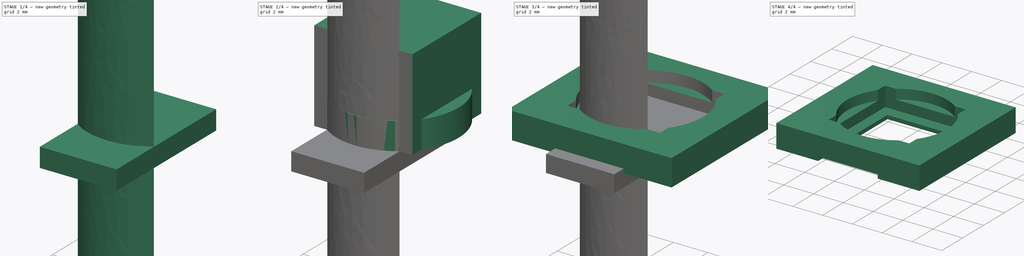
[diagram: build sequence overview — one tinted view per stage of 4, left to right]
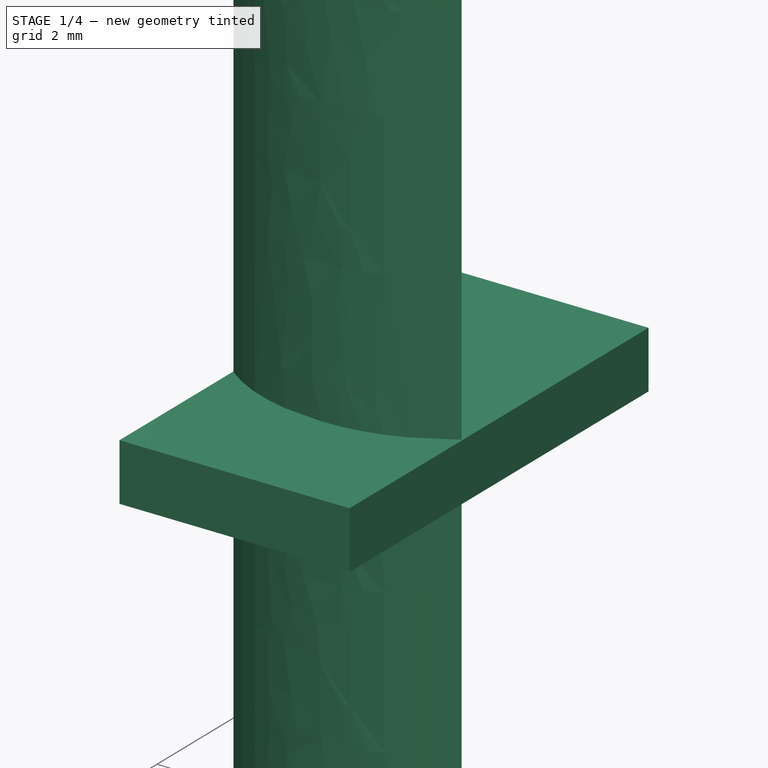
[diagram: stage 1 of 4 — iso view after this stage's code; geometry added in this stage tinted green]
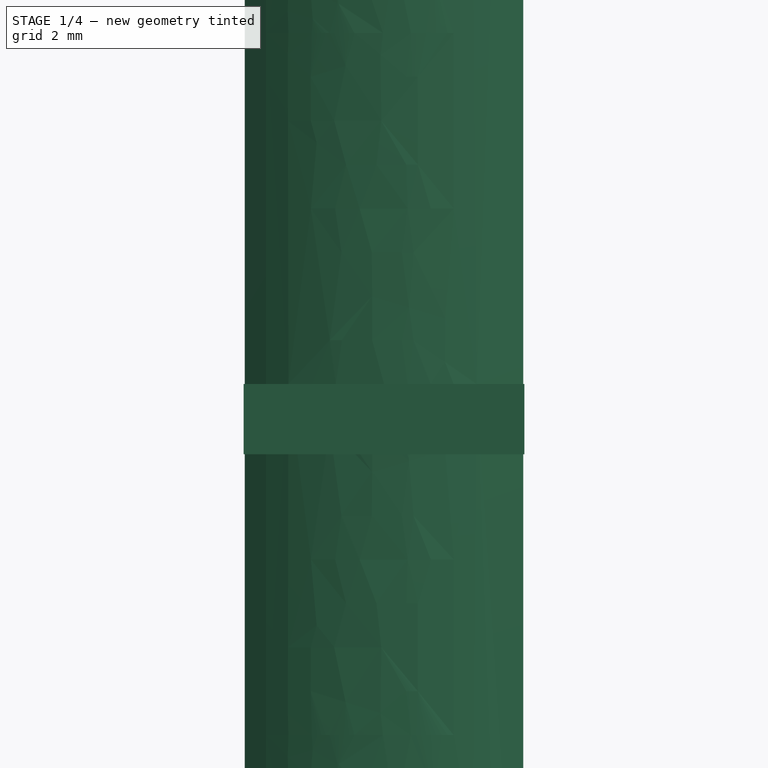
[diagram: stage 1 of 4 — front view after this stage's code; geometry added in this stage tinted green]
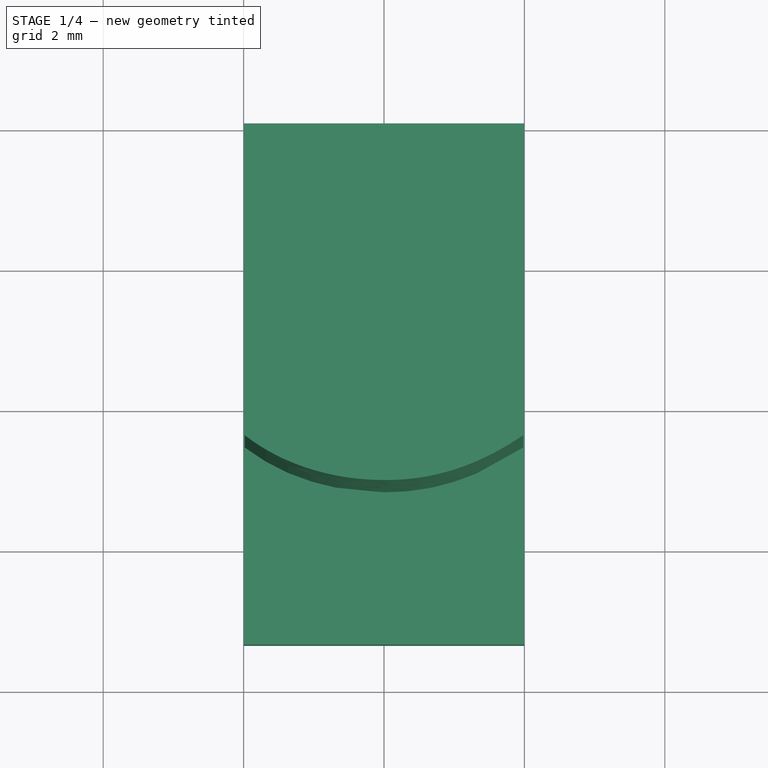
[diagram: stage 1 of 4 — top view after this stage's code; geometry added in this stage tinted green]
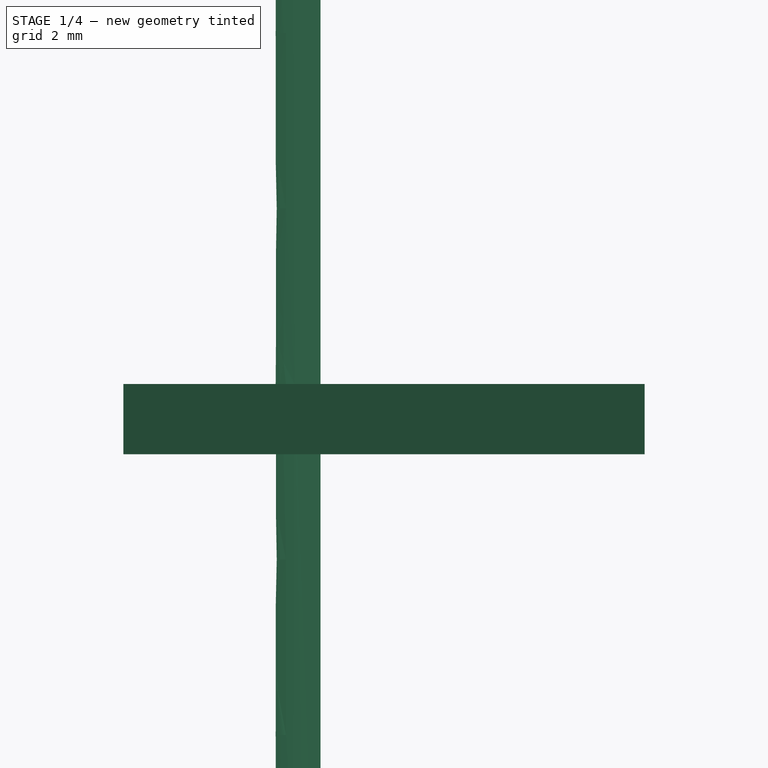
[diagram: stage 1 of 4 — right view after this stage's code; geometry added in this stage tinted green]
FCSTD DOCUMENT  (FreeCAD 0.21R33668 +26 (Git))
Label: o-ring_glass_mount_bottom
License: All rights reserved
LicenseURL: http://en.wikipedia.org/wiki/All_rights_reserved
objects: Sketcher::SketchObject×5, PartDesign::Pad×5, PartDesign::Body×5, Part::Cut×4
note: 24 computed .brp shape members not serialized (recipe doc carries the construction recipe); baked Part::Feature solids carry a one-line shape summary decoded from their .brp

FEATURE [Sketcher::SketchObject] Sketch
  FullyConstrained = true
  MapMode = 5
  Support = -> [XY_Plane]
  sketch-geometry (4):
    g0: LineSegment StartX=-2 StartY=-5.5 StartZ=0 EndX=2 EndY=-5.5 EndZ=0
    g1: LineSegment StartX=2 StartY=-5.5 StartZ=0 EndX=2 EndY=1.926 EndZ=0
    g2: LineSegment StartX=2 StartY=1.926 StartZ=0 EndX=-2 EndY=1.926 EndZ=0
    g3: LineSegment StartX=-2 StartY=1.926 StartZ=0 EndX=-2 EndY=-5.5 EndZ=0
  constraints (11):
    c: Coincident(g0,g1)
    c: Coincident(g1,g2)
    c: Coincident(g2,g3)
    c: Coincident(g3,g0)
    c: Horizontal(g2)
    c: Vertical(g1)
    c: Vertical(g3)
    c: Symmetric(g0,g0,g-2)
    c: DistanceX(g0,g0) = 4
    c: DistanceY(g0,g-1) = 5.5
    c: DistanceY(g-1,g1) = 1.926
FEATURE [PartDesign::Pad] Pad008
  Direction = (0,0,1)
  Length = 1
  Length2 = 10
  Profile = -> Sketch
  ReferenceAxis = -> Sketch [N_Axis]
  Reversed = true
  Type = 0
FEATURE [Sketcher::SketchObject] Sketch008
  FullyConstrained = true
  MapMode = 5
  Support = -> [XY_Plane008]
  sketch-geometry (10):
    g0: LineSegment StartX=-1.98291 StartY=-2.69187 StartZ=0 EndX=1.98291 EndY=-2.69187 EndZ=0
    g1-g5: Circle x5 (B-spline internal-alignment scaffolding for g6; pole/knot coordinates omitted)
    g6: BSplineCurve PolesCount=5 KnotsCount=3 Degree=3 IsPeriodic=0
    g7: GeomPoint X=1.98291 Y=-2.69187 Z=0
    g8: GeomPoint X=0 Y=-3.33 Z=0
    g9: GeomPoint X=-1.98291 Y=-2.69187 Z=0
  constraints (17):
    c: Symmetric(g0,g0,g-2)
    c: Weight(g1) = 1
    c: Coincident(g6,g0)
    c: Equal(g1, g2-g5) x4
    c: Coincident(g6,g0)
    c: InternalAlignment(g1-g5 -> g6) x5
    c: InternalAlignment(g7,g6)
    c: InternalAlignment(g8,g6)
    c: InternalAlignment(g9,g6)
    c: PointOnObject(g8,g-2)
    c: DistanceX(g0) = 1.98291
    c: DistanceY(g0) = -2.69187
    c: DistanceX(g2) = 1.3068
    c: DistanceY(g2) = -3.14996
    c: DistanceY(g8) = -3.33
    c: DistanceX(g3) = 0.04804
    c: DistanceY(g3) = -3.51438
FEATURE [PartDesign::Pad] Pad009
  Direction = (0,0,1)
  Length = 10
  Length2 = 10
  Profile = -> Sketch008
  ReferenceAxis = -> Sketch008 [N_Axis]
  Type = 4
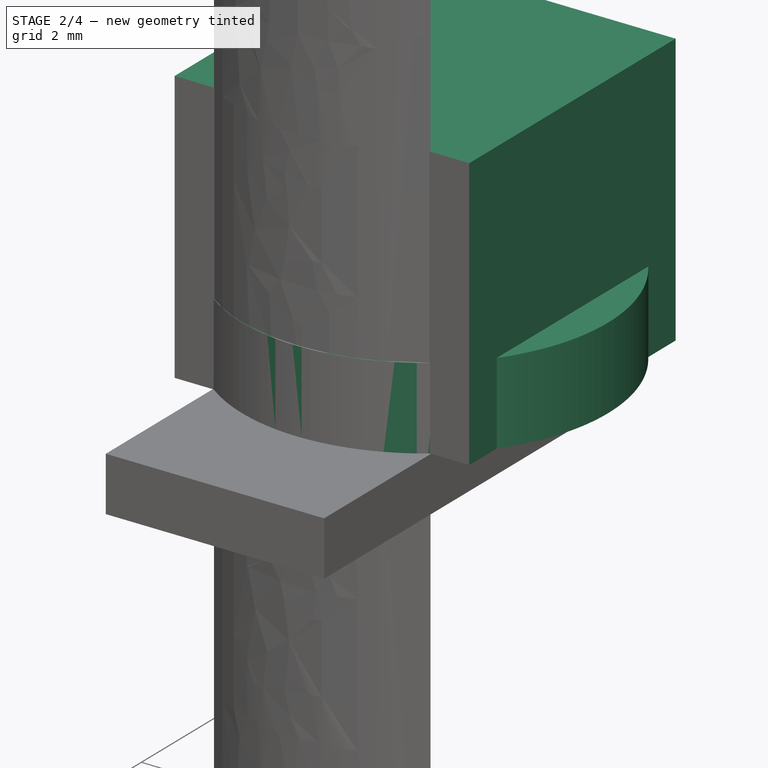
[diagram: stage 2 of 4 — iso view after this stage's code; geometry added in this stage tinted green]
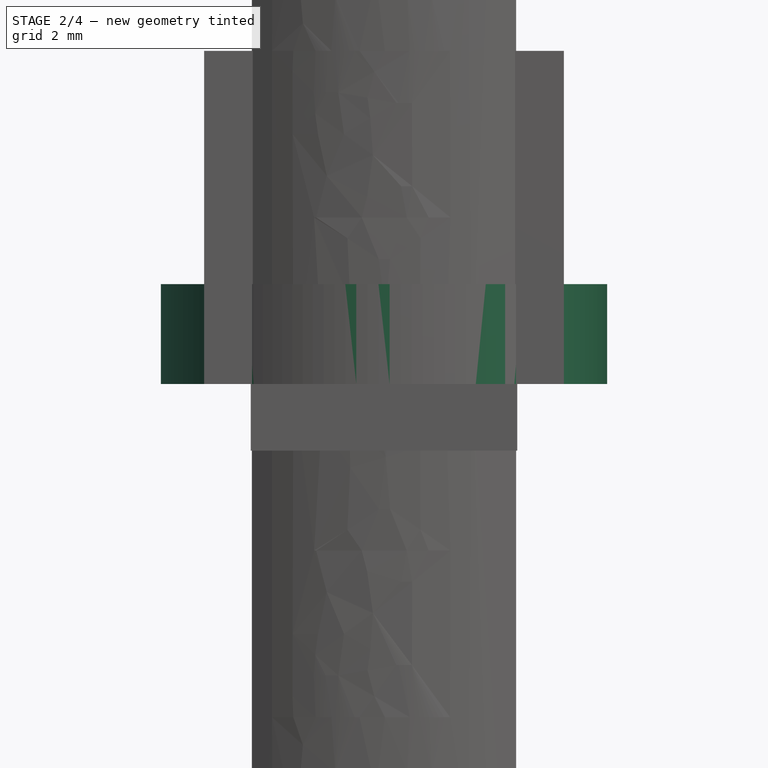
[diagram: stage 2 of 4 — front view after this stage's code; geometry added in this stage tinted green]
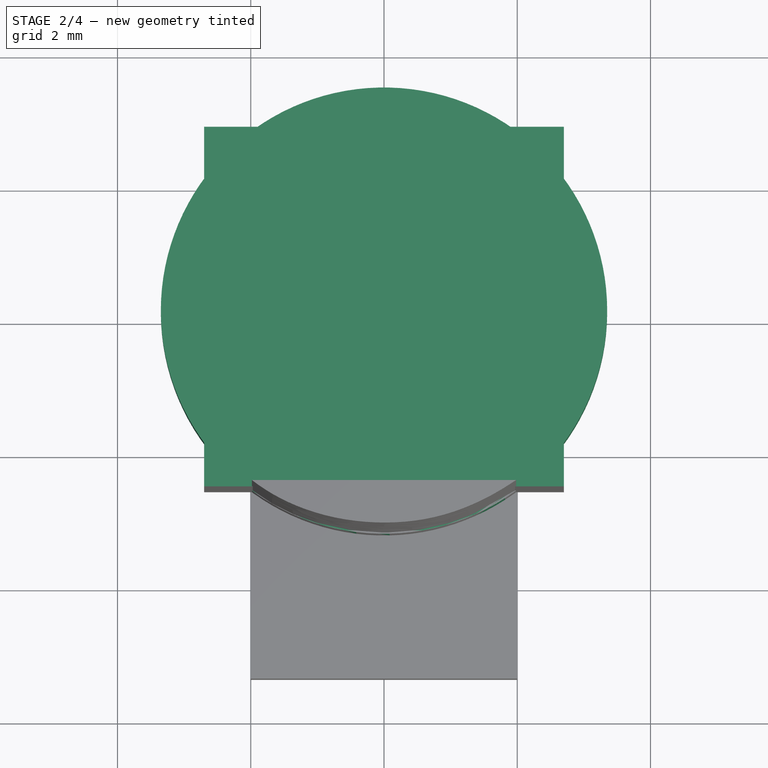
[diagram: stage 2 of 4 — top view after this stage's code; geometry added in this stage tinted green]
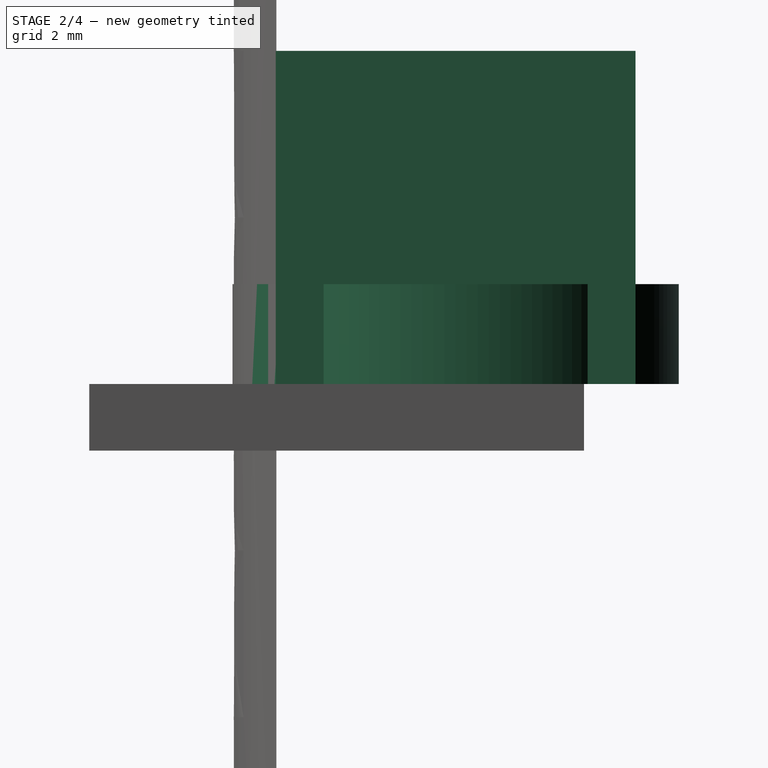
[diagram: stage 2 of 4 — right view after this stage's code; geometry added in this stage tinted green]
FEATURE [PartDesign::Body] Body001
  Group = -> [Sketch001,Pad]
  Origin = -> Origin001
  Placement = pos=(0,0.5,0) rot=(0,0,1;0rad)
  Tip = -> Pad
FEATURE [Sketcher::SketchObject] Sketch006
  FullyConstrained = true
  MapMode = 5
  Support = -> [XY_Plane006]
  sketch-geometry (5):
    g0: LineSegment StartX=2.7 StartY=-2.7 StartZ=0 EndX=2.7 EndY=2.7 EndZ=0
    g1: LineSegment StartX=2.7 StartY=2.7 StartZ=0 EndX=-2.7 EndY=2.7 EndZ=0
    g2: LineSegment StartX=-2.7 StartY=2.7 StartZ=0 EndX=-2.7 EndY=-2.7 EndZ=0
    g3: LineSegment StartX=-2.7 StartY=-2.7 StartZ=0 EndX=2.7 EndY=-2.7 EndZ=0
    g4: GeomPoint X=0 Y=0 Z=0
  constraints (12):
    c: Coincident(g0,g1)
    c: Coincident(g1,g2)
    c: Coincident(g2,g3)
    c: Coincident(g3,g0)
    c: Horizontal(g1)
    c: Horizontal(g3)
    c: Vertical(g0)
    c: Vertical(g2)
    c: Symmetric(g1,g0,g4)
    c: Coincident(g4,g-1)
    c: DistanceY(g0,g0) = 5.4
    c: Equal(g1,g0)
FEATURE [PartDesign::Pad] Pad006
  Direction = (0,0,1)
  Length = 5
  Length2 = 10
  Profile = -> Sketch006
  ReferenceAxis = -> Sketch006 [N_Axis]
  Type = 0
FEATURE [Sketcher::SketchObject] Sketch007
  FullyConstrained = true
  MapMode = 5
  Support = -> [XY_Plane007]
  sketch-geometry (1):
    g0: Circle CenterX=0 CenterY=0 CenterZ=0 NormalX=0 NormalY=0 NormalZ=1 AngleXU=0 Radius=3.35
  constraints (2):
    c: Coincident(g0,g-1)
    c: Diameter(g0) = 6.7
FEATURE [PartDesign::Pad] Pad007
  Direction = (0,0,1)
  Length = 1.5
  Length2 = 10
  Profile = -> Sketch007
  ReferenceAxis = -> Sketch007 [N_Axis]
  Type = 0
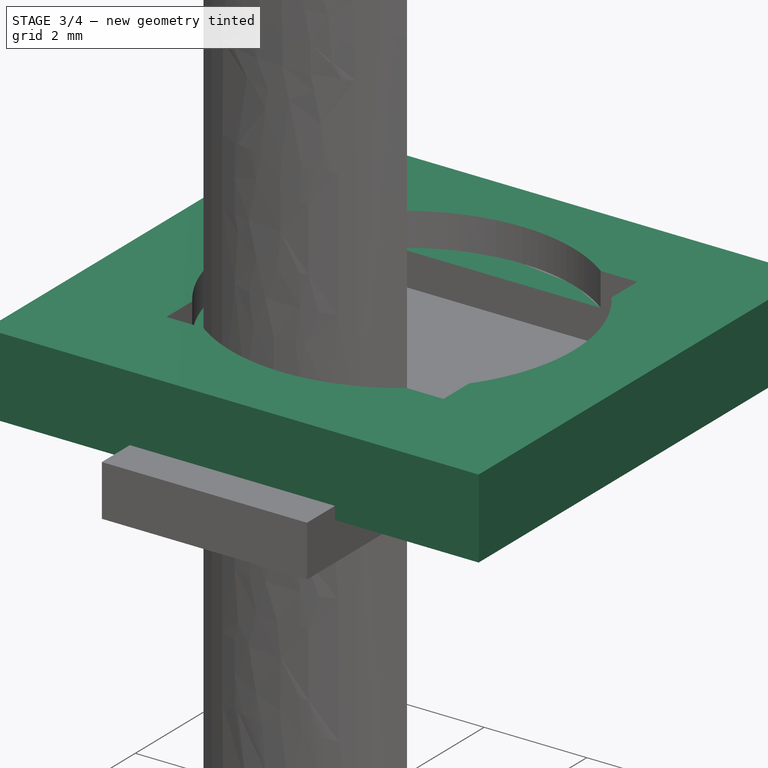
[diagram: stage 3 of 4 — iso view after this stage's code; geometry added in this stage tinted green]
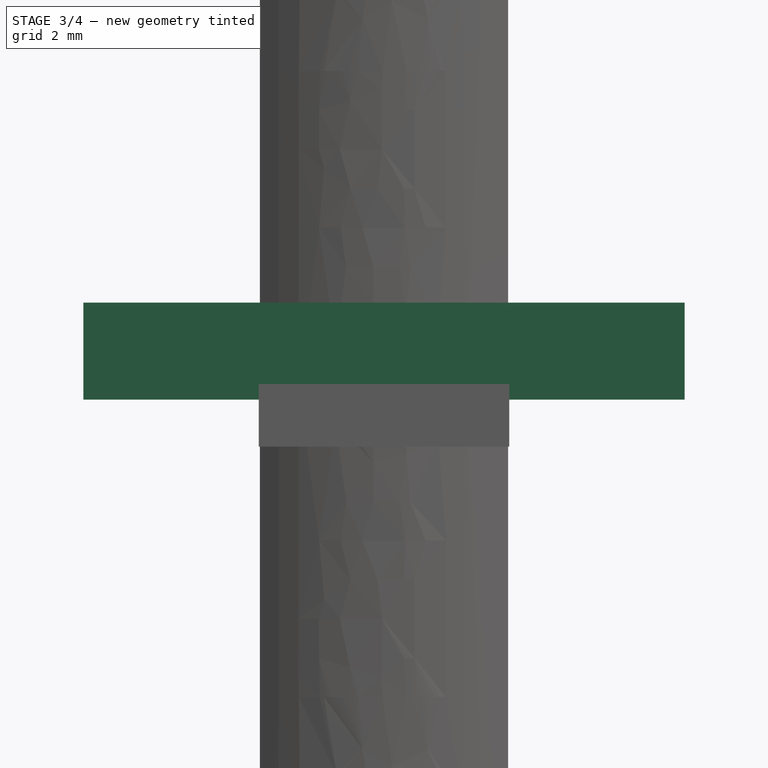
[diagram: stage 3 of 4 — front view after this stage's code; geometry added in this stage tinted green]
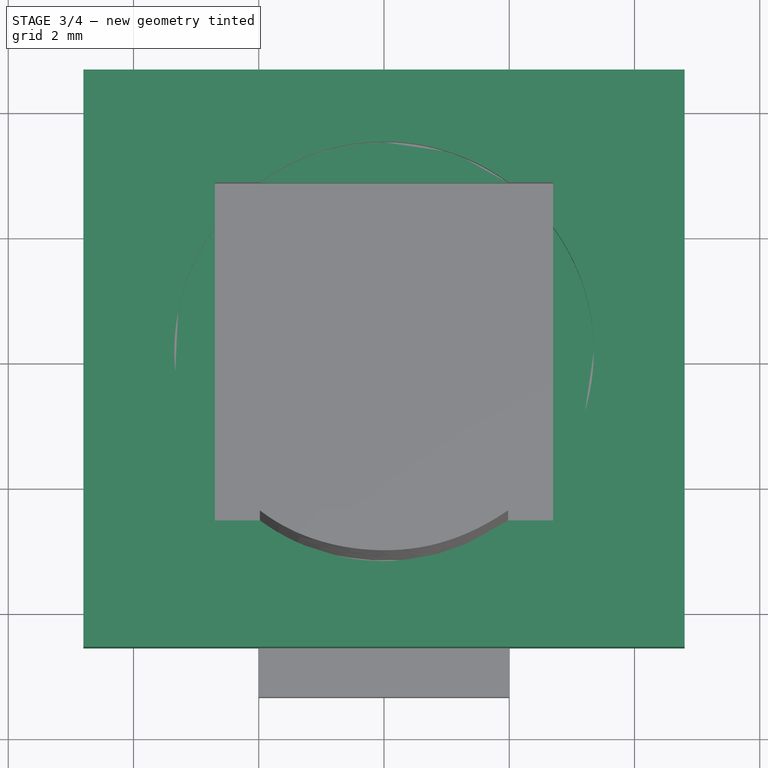
[diagram: stage 3 of 4 — top view after this stage's code; geometry added in this stage tinted green]
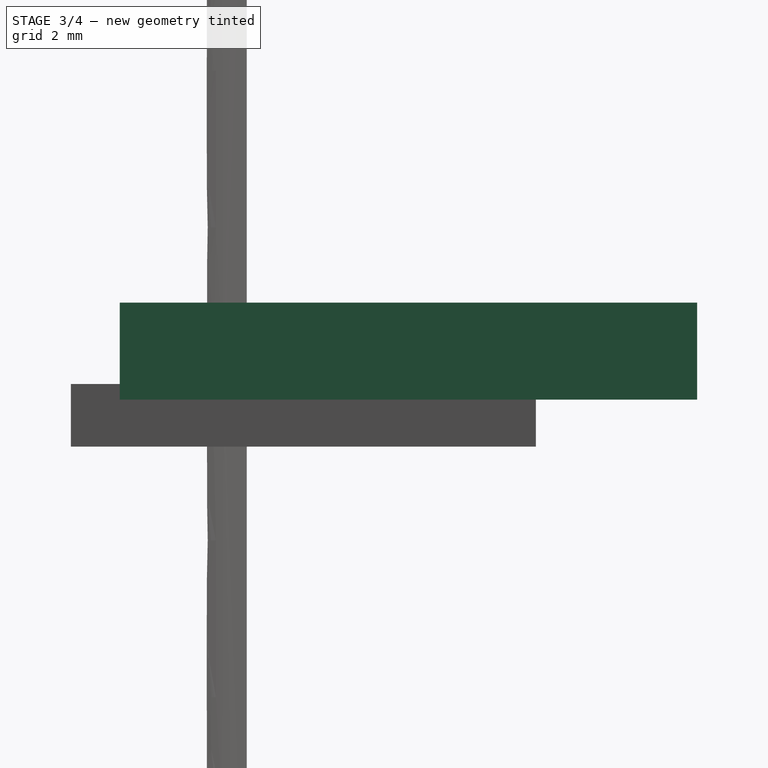
[diagram: stage 3 of 4 — right view after this stage's code; geometry added in this stage tinted green]
FEATURE [Sketcher::SketchObject] Sketch001
  FullyConstrained = true
  MapMode = 5
  Support = -> [XY_Plane001]
  sketch-geometry (4):
    g0: LineSegment StartX=-4.8 StartY=4 StartZ=0 EndX=4.8 EndY=4 EndZ=0
    g1: LineSegment StartX=4.8 StartY=4 StartZ=0 EndX=4.8 EndY=-5.22 EndZ=0
    g2: LineSegment StartX=4.8 StartY=-5.22 StartZ=0 EndX=-4.8 EndY=-5.22 EndZ=0
    g3: LineSegment StartX=-4.8 StartY=-5.22 StartZ=0 EndX=-4.8 EndY=4 EndZ=0
  constraints (12):
    c: Coincident(g0,g1)
    c: Coincident(g1,g2)
    c: Coincident(g2,g3)
    c: Coincident(g3,g0)
    c: Horizontal(g0)
    c: Horizontal(g2)
    c: Vertical(g1)
    c: Vertical(g3)
    c: DistanceX(g-1,g0) = 4.8  'x'
    c: DistanceX(g0,g-1) = 4.8
    c: DistanceY(g-1,g0) = 4
    c: DistanceY(g1,g-1) = 5.22
FEATURE [PartDesign::Pad] Pad
  Direction = (0,0,1)
  Length = 1.3
  Length2 = 0.25
  Profile = -> Sketch001
  ReferenceAxis = -> Sketch001 [N_Axis]
  Type = 4
FEATURE [PartDesign::Body] Body006  label="Glass _cutout"
  Group = -> [Sketch006,Pad006]
  Origin = -> Origin006
  Tip = -> Pad006
FEATURE [Part::Cut] Cut  label="Glass_Cutout_Cut"
  Base = -> Body001
  Tool = -> Body006
FEATURE [PartDesign::Body] Body007  label="O-ring_Cutout"
  Group = -> [Sketch007,Pad007]
  Origin = -> Origin007
  Placement = pos=(0,0,0.65) rot=(0,0,1;0rad)
  Tip = -> Pad007
FEATURE [Part::Cut] Cut001  label="O-ring_cutout_Cut"
  Base = -> Cut
  Tool = -> Body007
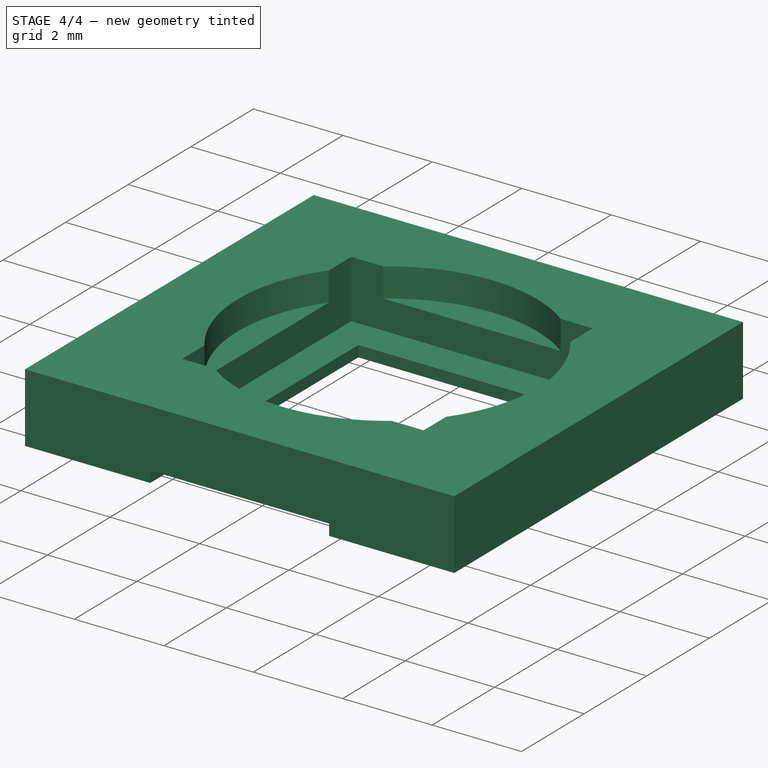
[diagram: stage 4 of 4 — iso view after this stage's code; geometry added in this stage tinted green]
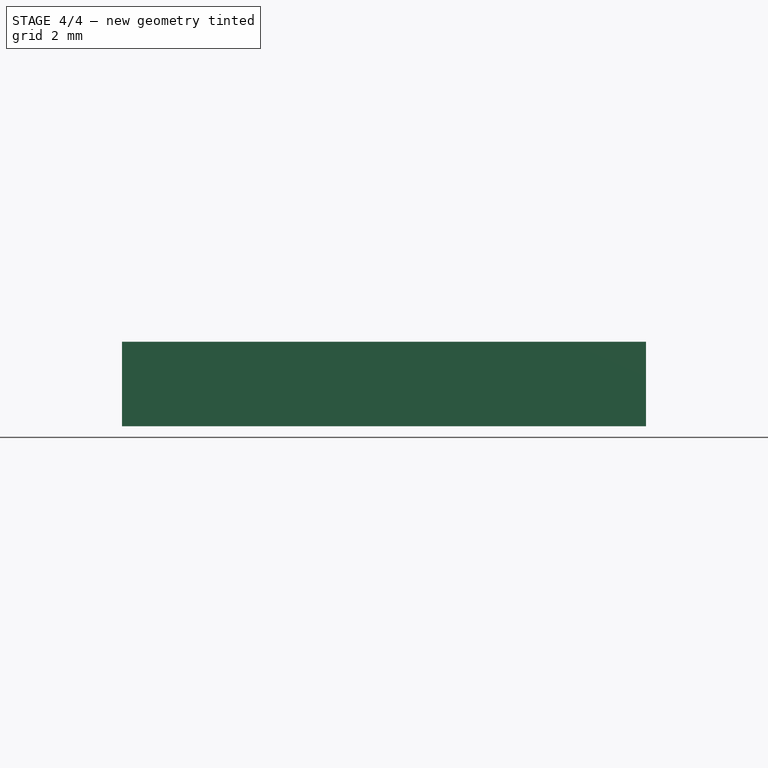
[diagram: stage 4 of 4 — front view after this stage's code; geometry added in this stage tinted green]
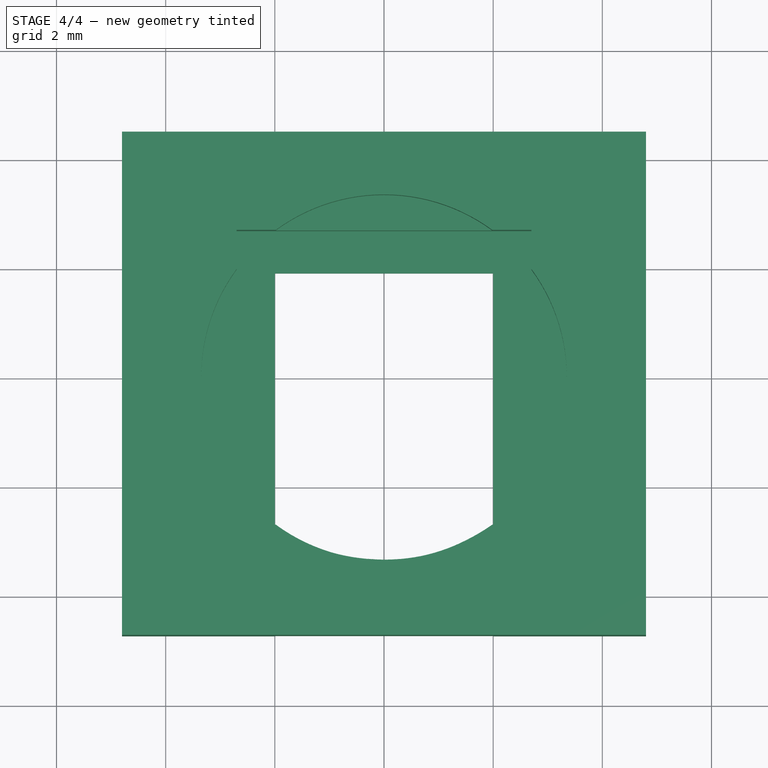
[diagram: stage 4 of 4 — top view after this stage's code; geometry added in this stage tinted green]
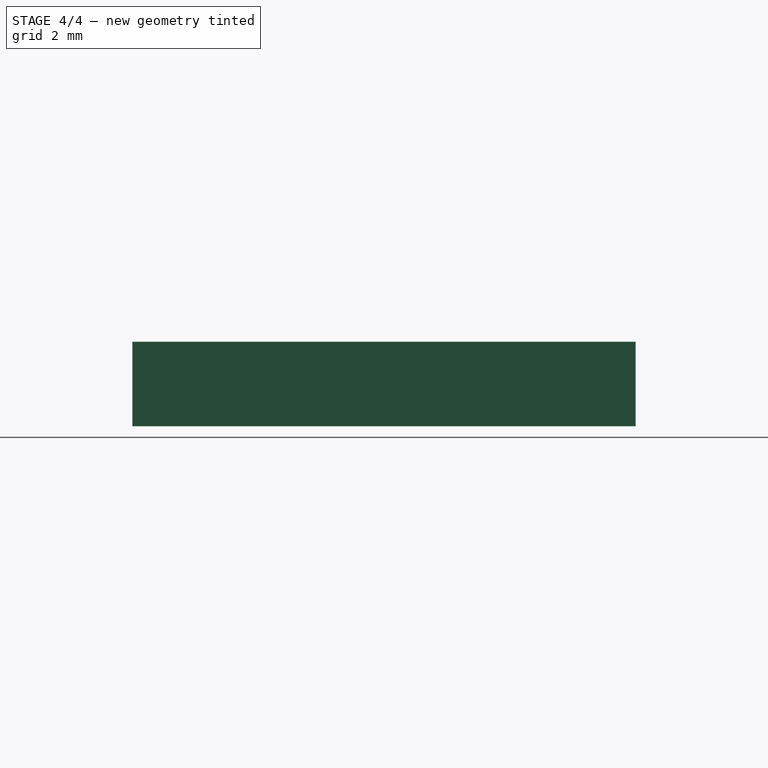
[diagram: stage 4 of 4 — right view after this stage's code; geometry added in this stage tinted green]
FEATURE [PartDesign::Body] Body  label="sensor entrance channel cut"
  Group = -> [Sketch,Pad008]
  Origin = -> Origin
  Tip = -> Pad008
FEATURE [Part::Cut] Cut002
  Base = -> Cut001
  Tool = -> Body
FEATURE [PartDesign::Body] Body008  label="Bottom_Cut_avoid_thin_bridge"
  Group = -> [Sketch008,Pad009]
  Origin = -> Origin008
  Tip = -> Pad009
FEATURE [Part::Cut] Cut003
  Base = -> Cut002
  Tool = -> Body008
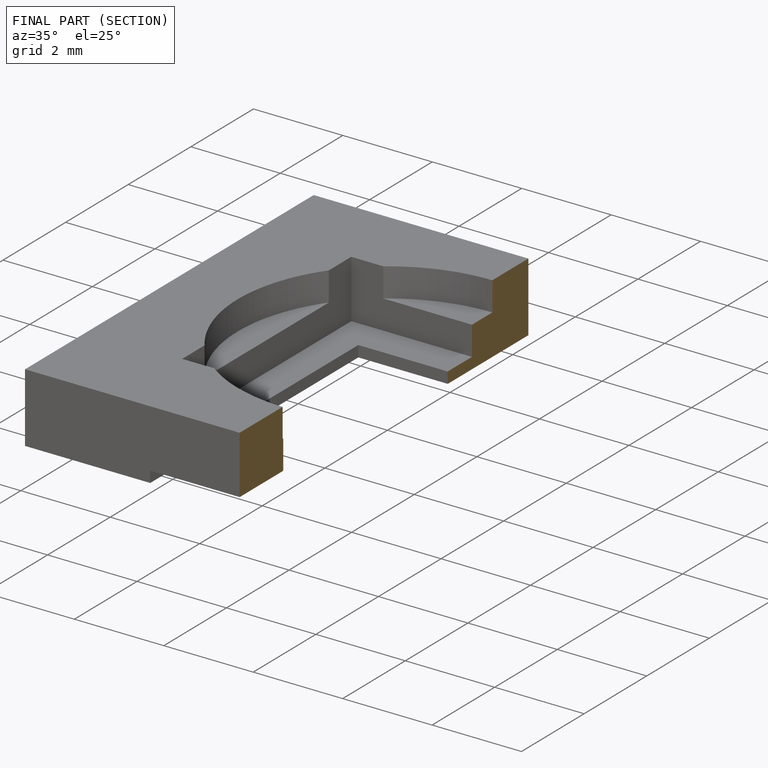
[diagram: finished part — half-section view (interior)]
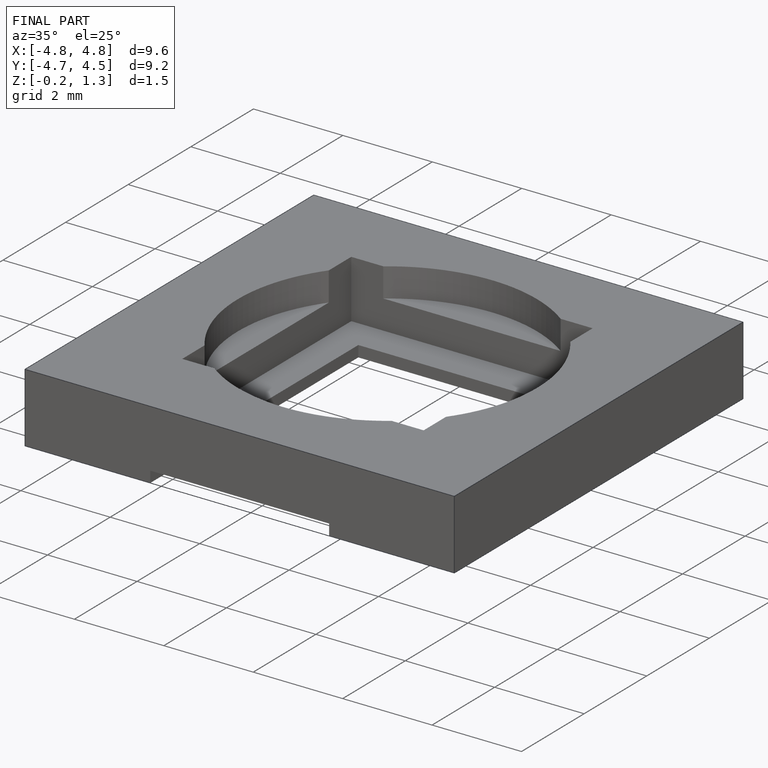
[diagram: finished part — iso view with bounding-box wireframe]
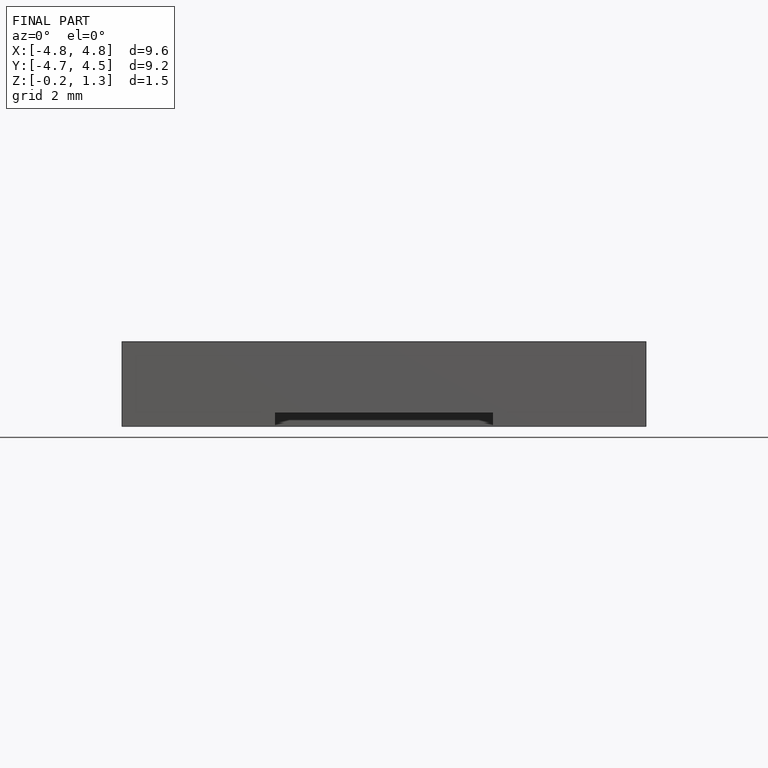
[diagram: finished part — front view with bounding-box wireframe]
